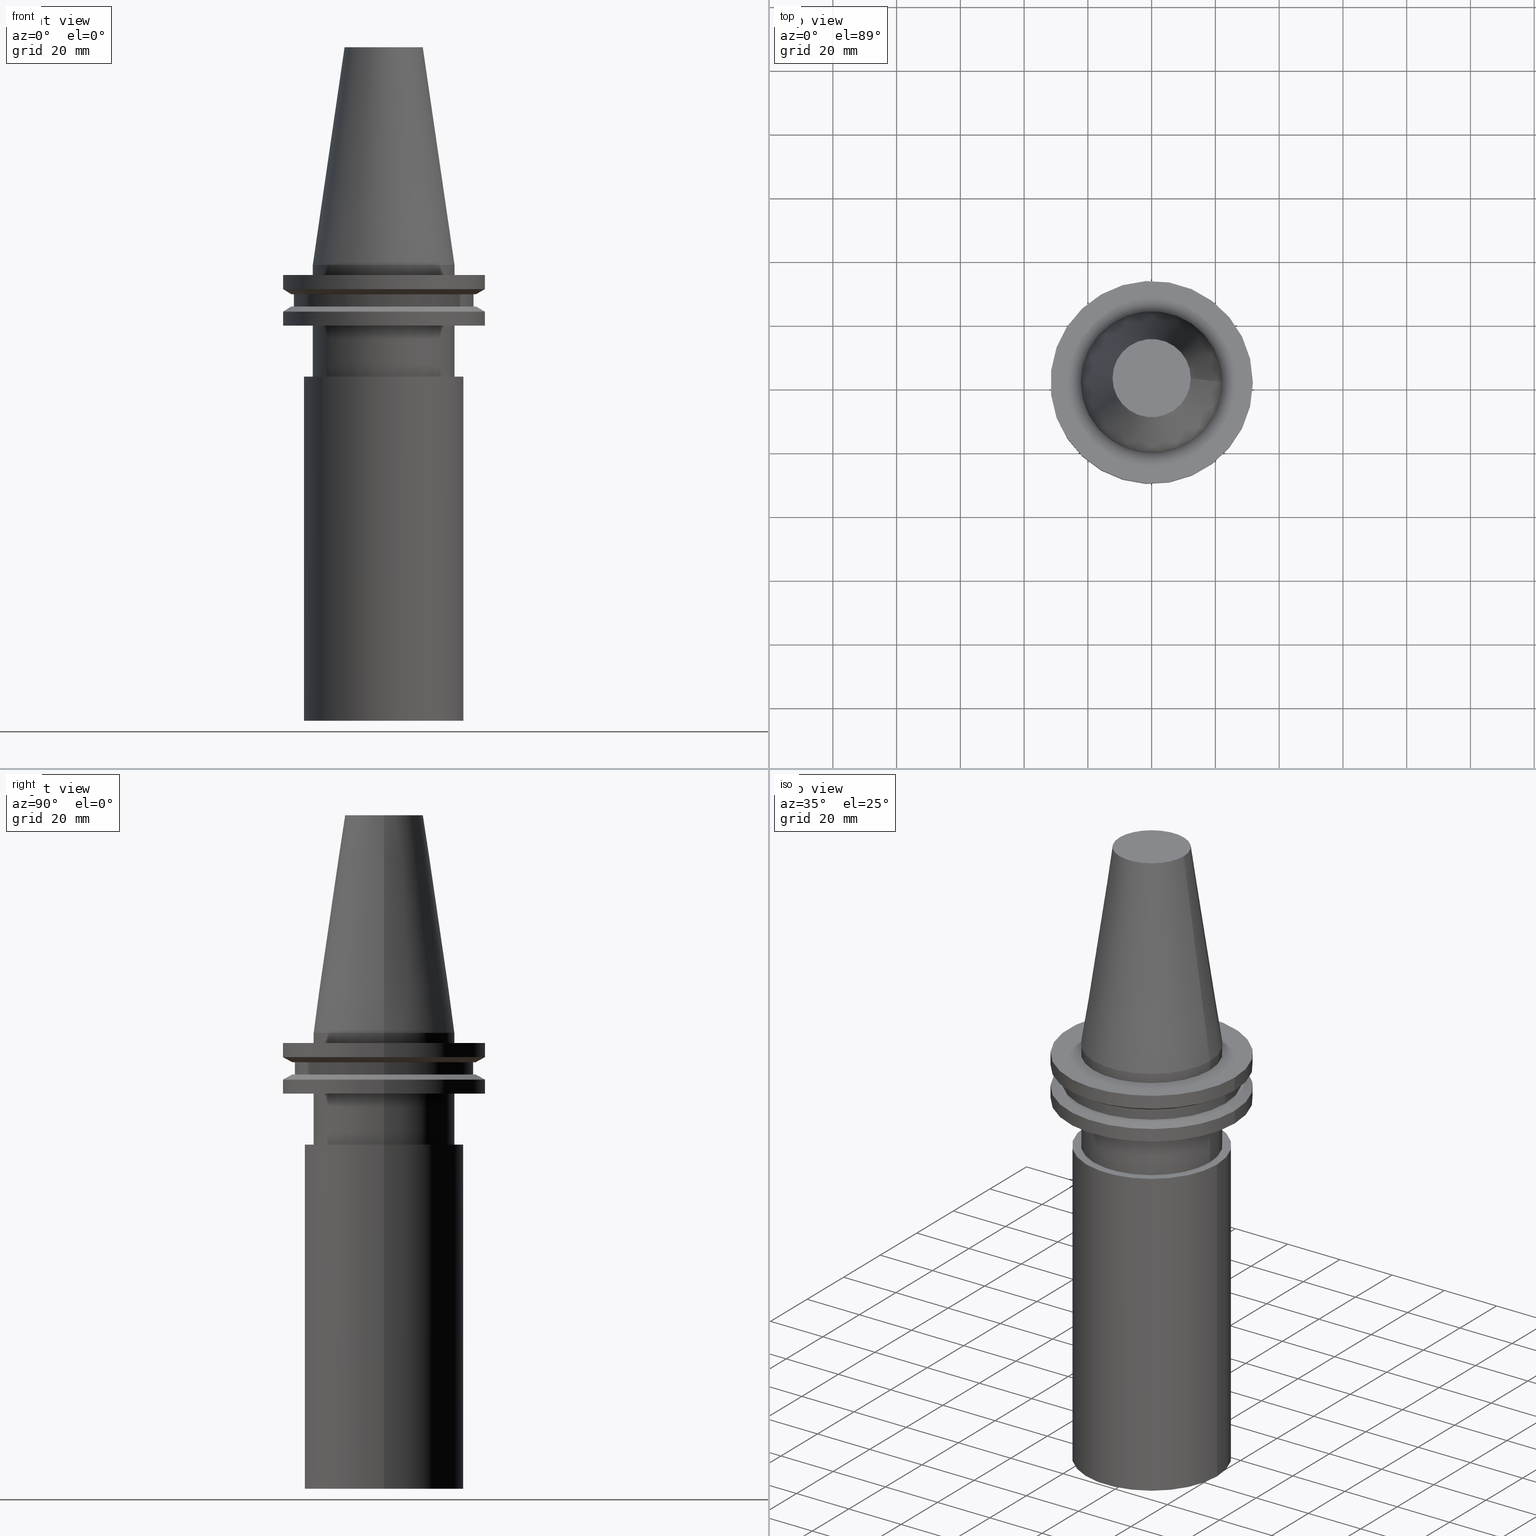
[diagram: canonical four-view strip — front | top / right | iso, engineering-drawing reading convention]
A machine part, canonical four-view strip (front | top / right | iso — engineering-drawing reading convention). The complete STEP part file that produces these views, byte-faithful:
ISO-10303-21;
HEADER;
FILE_DESCRIPTION (( 'STEP AP203' ),
    '1' );
FILE_NAME ('11_326_454.stp',
    '2022-03-09T14:21:58',
    ( '' ),
    ( '' ),
    'SwSTEP 2.0',
    'SolidWorks 2021',
    '' );
FILE_SCHEMA (( 'CONFIG_CONTROL_DESIGN' ));
ENDSEC;

DATA;
#1 = DIRECTION ( 'NONE',  ( 1.000000000000000000, 0.000000000000000000, 0.000000000000000000 ) ) ;
#2 = CARTESIAN_POINT ( 'NONE',  ( 0.000000000000000000, 0.000000000000000000, -19.04999999999999716 ) ) ;
#3 = SHAPE_DEFINITION_REPRESENTATION ( #28, #20 ) ;
#4 = APPLICATION_CONTEXT ( 'configuration controlled 3d designs of mechanical parts and assemblies' ) ;
#5 = AXIS2_PLACEMENT_3D ( 'NONE', #129, #291, #99 ) ;
#6 = DIRECTION ( 'NONE',  ( 1.000000000000000000, 0.000000000000000000, 0.000000000000000000 ) ) ;
#7 = CC_DESIGN_DATE_AND_TIME_ASSIGNMENT ( #62, #373, ( #182 ) ) ;
#8 = CARTESIAN_POINT ( 'NONE',  ( 0.000000000000000000, 0.000000000000000000, 0.000000000000000000 ) ) ;
#9 = FACE_OUTER_BOUND ( 'NONE', #49, .T. ) ;
#10 = DIRECTION ( 'NONE',  ( 0.000000000000000000, 0.000000000000000000, -1.000000000000000000 ) ) ;
#11 = EDGE_LOOP ( 'NONE', ( #137 ) ) ;
#12 = AXIS2_PLACEMENT_3D ( 'NONE', #165, #326, #386 ) ;
#13 = CARTESIAN_POINT ( 'NONE',  ( 25.00000000000000000, 0.000000000000000000, -35.04999999999999716 ) ) ;
#14 = EDGE_LOOP ( 'NONE', ( #237 ) ) ;
#15 = EDGE_LOOP ( 'NONE', ( #359 ) ) ;
#16 = ORIENTED_EDGE ( 'NONE', *, *, #37, .T. ) ;
#17 = APPROVAL ( #127, 'UNSPECIFIED' ) ;
#18 = AXIS2_PLACEMENT_3D ( 'NONE', #192, #321, #39 ) ;
#19 = EDGE_LOOP ( 'NONE', ( #268 ) ) ;
#20 = ADVANCED_BREP_SHAPE_REPRESENTATION ( '11_326_454', ( #245, #233, #43 ), #76 ) ;
#21 = EDGE_LOOP ( 'NONE', ( #16 ) ) ;
#22 = CARTESIAN_POINT ( 'NONE',  ( 0.000000000000000000, 0.000000000000000000, -19.04999999999999716 ) ) ;
#23 = AXIS2_PLACEMENT_3D ( 'NONE', #284, #218, #1 ) ;
#24 = CIRCLE ( 'NONE', #200, 31.75000000000000000 ) ;
#25 = CARTESIAN_POINT ( 'NONE',  ( 22.22500000000000142, 0.000000000000000000, -35.04999999999999716 ) ) ;
#26 = AXIS2_PLACEMENT_3D ( 'NONE', #2, #162, #69 ) ;
#27 = CARTESIAN_POINT ( 'NONE',  ( 0.000000000000000000, 25.00000000000000000, -143.0000000000000000 ) ) ;
#28 = PRODUCT_DEFINITION_SHAPE ( 'NONE', 'NONE',  #182 ) ;
#29 = DIRECTION ( 'NONE',  ( -0.000000000000000000, -0.000000000000000000, 1.000000000000000000 ) ) ;
#30 = APPROVAL_STATUS ( 'not_yet_approved' ) ;
#31 = FACE_OUTER_BOUND ( 'NONE', #391, .T. ) ;
#32 = APPLICATION_PROTOCOL_DEFINITION ( 'international standard', 'config_control_design', 1994, #4 ) ;
#33 = FACE_OUTER_BOUND ( 'NONE', #236, .T. ) ;
#34 = PERSON_AND_ORGANIZATION ( #93, #366 ) ;
#35 = ADVANCED_FACE ( 'NONE', ( #239, #78 ), #390, .F. ) ;
#36 = DIRECTION ( 'NONE',  ( -0.000000000000000000, -0.000000000000000000, 1.000000000000000000 ) ) ;
#37 = EDGE_CURVE ( 'NONE', #144, #144, #312, .T. ) ;
#38 = PERSON_AND_ORGANIZATION_ROLE ( 'classification_officer' ) ;
#39 = DIRECTION ( 'NONE',  ( 1.000000000000000000, 0.000000000000000000, 0.000000000000000000 ) ) ;
#40 = DIRECTION ( 'NONE',  ( 1.000000000000000000, 0.000000000000000000, 0.000000000000000000 ) ) ;
#41 = DIRECTION ( 'NONE',  ( 1.000000000000000000, 0.000000000000000000, 0.000000000000000000 ) ) ;
#42 = ORIENTED_EDGE ( 'NONE', *, *, #199, .F. ) ;
#43 = AXIS2_PLACEMENT_3D ( 'NONE', #273, #393, #275 ) ;
#44 = CC_DESIGN_PERSON_AND_ORGANIZATION_ASSIGNMENT ( #219, #155, ( #374 ) ) ;
#45 = ORIENTED_EDGE ( 'NONE', *, *, #116, .F. ) ;
#46 = ORIENTED_EDGE ( 'NONE', *, *, #204, .T. ) ;
#47 = EDGE_LOOP ( 'NONE', ( #145 ) ) ;
#48 = LOCAL_TIME ( 8, 21, 57.00000000000000000, #184 ) ;
#49 = EDGE_LOOP ( 'NONE', ( #173 ) ) ;
#50 = CARTESIAN_POINT ( 'NONE',  ( 0.000000000000000000, 0.000000000000000000, -3.174999999999997158 ) ) ;
#51 = DIRECTION ( 'NONE',  ( 0.000000000000000000, -0.000000000000000000, 1.000000000000000000 ) ) ;
#52 = CARTESIAN_POINT ( 'NONE',  ( 22.22500000000000142, 0.000000000000000000, -3.174999999999997158 ) ) ;
#53 = DIRECTION ( 'NONE',  ( 1.000000000000000000, 0.000000000000000000, 0.000000000000000000 ) ) ;
#54 = PERSON_AND_ORGANIZATION_ROLE ( 'creator' ) ;
#55 = CYLINDRICAL_SURFACE ( 'NONE', #101, 25.00000000000000000 ) ;
#56 = ADVANCED_FACE ( 'NONE', ( #91, #85 ), #372, .F. ) ;
#57 = CARTESIAN_POINT ( 'NONE',  ( 0.000000000000000000, 0.000000000000000000, -35.04999999999999716 ) ) ;
#58 = AXIS2_PLACEMENT_3D ( 'NONE', #289, #60, #229 ) ;
#59 = AXIS2_PLACEMENT_3D ( 'NONE', #324, #97, #346 ) ;
#60 = DIRECTION ( 'NONE',  ( -0.000000000000000000, -0.000000000000000000, 1.000000000000000000 ) ) ;
#61 = ADVANCED_FACE ( 'NONE', ( #257 ), #277, .F. ) ;
#62 = DATE_AND_TIME ( #98, #180 ) ;
#63 = EDGE_CURVE ( 'NONE', #248, #248, #322, .T. ) ;
#64 = DIRECTION ( 'NONE',  ( 1.000000000000000000, 0.000000000000000000, 0.000000000000000000 ) ) ;
#65 = DIRECTION ( 'NONE',  ( 1.000000000000000000, 0.000000000000000000, 0.000000000000000000 ) ) ;
#66 = CIRCLE ( 'NONE', #333, 22.22500000000000142 ) ;
#67 = ADVANCED_FACE ( 'NONE', ( #115, #249 ), #252, .T. ) ;
#68 = APPROVAL_PERSON_ORGANIZATION ( #34, #138, #221 ) ;
#69 = DIRECTION ( 'NONE',  ( 1.000000000000000000, 0.000000000000000000, 0.000000000000000000 ) ) ;
#70 = CARTESIAN_POINT ( 'NONE',  ( 0.000000000000000000, 0.000000000000000000, 0.000000000000000000 ) ) ;
#71 = EDGE_LOOP ( 'NONE', ( #211 ) ) ;
#72 =( NAMED_UNIT ( * ) SI_UNIT ( $, .STERADIAN. ) SOLID_ANGLE_UNIT ( ) );
#73 = AXIS2_PLACEMENT_3D ( 'NONE', #338, #280, #120 ) ;
#74 = CIRCLE ( 'NONE', #261, 28.17999999999999972 ) ;
#75 = ORIENTED_EDGE ( 'NONE', *, *, #204, .F. ) ;
#76 =( GEOMETRIC_REPRESENTATION_CONTEXT ( 3 ) GLOBAL_UNCERTAINTY_ASSIGNED_CONTEXT ( ( #394 ) ) GLOBAL_UNIT_ASSIGNED_CONTEXT ( ( #238, #399, #72 ) ) REPRESENTATION_CONTEXT ( 'NONE', 'WORKASPACE' ) );
#77 = ORIENTED_EDGE ( 'NONE', *, *, #227, .F. ) ;
#78 = FACE_OUTER_BOUND ( 'NONE', #175, .T. ) ;
#79 = VERTEX_POINT ( 'NONE', #337 ) ;
#80 = ORIENTED_EDGE ( 'NONE', *, *, #370, .T. ) ;
#81 = CIRCLE ( 'NONE', #89, 22.22500000000000142 ) ;
#82 = DIRECTION ( 'NONE',  ( -0.000000000000000000, -0.000000000000000000, 1.000000000000000000 ) ) ;
#83 = EDGE_LOOP ( 'NONE', ( #135 ) ) ;
#84 = VERTEX_POINT ( 'NONE', #181 ) ;
#85 = FACE_BOUND ( 'NONE', #47, .T. ) ;
#86 = EDGE_CURVE ( 'NONE', #114, #114, #24, .T. ) ;
#87 = FACE_OUTER_BOUND ( 'NONE', #15, .T. ) ;
#88 = DIRECTION ( 'NONE',  ( 1.000000000000000000, 0.000000000000000000, 0.000000000000000000 ) ) ;
#89 = AXIS2_PLACEMENT_3D ( 'NONE', #8, #189, #40 ) ;
#90 = PERSON_AND_ORGANIZATION ( #93, #366 ) ;
#91 = FACE_OUTER_BOUND ( 'NONE', #361, .T. ) ;
#92 = CARTESIAN_POINT ( 'NONE',  ( 0.000000000000000000, 22.22500000000000142, -35.04999999999999716 ) ) ;
#93 = PERSON ( 'UNSPECIFIED', 'UNSPECIFIED', 'UNSPECIFIED', ('UNSPECIFIED'), ('UNSPECIFIED'), ('UNSPECIFIED') ) ;
#94 = APPROVAL_STATUS ( 'not_yet_approved' ) ;
#95 = DIRECTION ( 'NONE',  ( -0.000000000000000000, -0.000000000000000000, 1.000000000000000000 ) ) ;
#96 = CIRCLE ( 'NONE', #106, 28.17999999999999972 ) ;
#97 = DIRECTION ( 'NONE',  ( 0.000000000000000000, 0.000000000000000000, -1.000000000000000000 ) ) ;
#98 = CALENDAR_DATE ( 2022, 9, 3 ) ;
#99 = DIRECTION ( 'NONE',  ( -1.000000000000000000, 0.000000000000000000, -0.000000000000000000 ) ) ;
#100 = FACE_BOUND ( 'NONE', #331, .T. ) ;
#101 = AXIS2_PLACEMENT_3D ( 'NONE', #309, #29, #375 ) ;
#102 = PLANE ( 'NONE',  #5 ) ;
#103 = FACE_OUTER_BOUND ( 'NONE', #83, .T. ) ;
#104 = ORIENTED_EDGE ( 'NONE', *, *, #86, .F. ) ;
#105 = ADVANCED_FACE ( 'NONE', ( #31, #214 ), #55, .T. ) ;
#106 = AXIS2_PLACEMENT_3D ( 'NONE', #160, #190, #64 ) ;
#107 = ORIENTED_EDGE ( 'NONE', *, *, #198, .T. ) ;
#108 = PRODUCT_RELATED_PRODUCT_CATEGORY ( 'detail', '', ( #374 ) ) ;
#109 = CARTESIAN_POINT ( 'NONE',  ( 31.75000000000000000, 0.000000000000000000, -3.174999999999997158 ) ) ;
#110 = FACE_BOUND ( 'NONE', #294, .T. ) ;
#111 = ORIENTED_EDGE ( 'NONE', *, *, #370, .F. ) ;
#112 = AXIS2_PLACEMENT_3D ( 'NONE', #22, #400, #151 ) ;
#113 = CC_DESIGN_APPROVAL ( #325, ( #231 ) ) ;
#114 = VERTEX_POINT ( 'NONE', #176 ) ;
#115 = FACE_OUTER_BOUND ( 'NONE', #274, .T. ) ;
#116 = EDGE_CURVE ( 'NONE', #305, #305, #251, .T. ) ;
#117 = FACE_OUTER_BOUND ( 'NONE', #336, .T. ) ;
#118 = DIRECTION ( 'NONE',  ( 1.000000000000000000, 0.000000000000000000, 0.000000000000000000 ) ) ;
#119 = PERSON_AND_ORGANIZATION_ROLE ( 'creator' ) ;
#120 = DIRECTION ( 'NONE',  ( 1.000000000000000000, 0.000000000000000000, 0.000000000000000000 ) ) ;
#121 = CONICAL_SURFACE ( 'NONE', #270, 28.97919780457007732, 1.047197551196598297 ) ;
#122 = CARTESIAN_POINT ( 'NONE',  ( 0.000000000000000000, 0.000000000000000000, -14.65472339340266572 ) ) ;
#123 = DIRECTION ( 'NONE',  ( 1.000000000000000000, 0.000000000000000000, 0.000000000000000000 ) ) ;
#124 = ADVANCED_FACE ( 'NONE', ( #313, #179 ), #311, .F. ) ;
#125 = FACE_OUTER_BOUND ( 'NONE', #209, .T. ) ;
#126 = AXIS2_PLACEMENT_3D ( 'NONE', #50, #397, #306 ) ;
#127 = APPROVAL_STATUS ( 'not_yet_approved' ) ;
#128 = AXIS2_PLACEMENT_3D ( 'NONE', #263, #382, #398 ) ;
#129 = CARTESIAN_POINT ( 'NONE',  ( 0.000000000000000000, 12.27178102086201150, 68.25000000000000000 ) ) ;
#130 = PLANE ( 'NONE',  #202 ) ;
#131 = DIRECTION ( 'NONE',  ( -0.000000000000000000, -0.000000000000000000, 1.000000000000000000 ) ) ;
#132 = AXIS2_PLACEMENT_3D ( 'NONE', #183, #369, #344 ) ;
#133 = LOCAL_TIME ( 8, 21, 57.00000000000000000, #152 ) ;
#134 = DIRECTION ( 'NONE',  ( 0.000000000000000000, 0.000000000000000000, -1.000000000000000000 ) ) ;
#135 = ORIENTED_EDGE ( 'NONE', *, *, #86, .T. ) ;
#136 = ADVANCED_FACE ( 'NONE', ( #220, #340 ), #342, .T. ) ;
#137 = ORIENTED_EDGE ( 'NONE', *, *, #148, .F. ) ;
#138 = APPROVAL ( #94, 'UNSPECIFIED' ) ;
#139 = ORIENTED_EDGE ( 'NONE', *, *, #199, .T. ) ;
#140 = AXIS2_PLACEMENT_3D ( 'NONE', #247, #185, #304 ) ;
#141 = AXIS2_PLACEMENT_3D ( 'NONE', #246, #82, #365 ) ;
#142 = EDGE_LOOP ( 'NONE', ( #46 ) ) ;
#143 = EDGE_LOOP ( 'NONE', ( #107 ) ) ;
#144 = VERTEX_POINT ( 'NONE', #109 ) ;
#145 = ORIENTED_EDGE ( 'NONE', *, *, #242, .T. ) ;
#146 = CIRCLE ( 'NONE', #26, 22.22500000000000142 ) ;
#147 = VERTEX_POINT ( 'NONE', #279 ) ;
#148 = EDGE_CURVE ( 'NONE', #356, #356, #66, .T. ) ;
#149 = DIRECTION ( 'NONE',  ( -0.000000000000000000, -0.000000000000000000, 1.000000000000000000 ) ) ;
#150 = CYLINDRICAL_SURFACE ( 'NONE', #141, 31.75000000000000000 ) ;
#151 = DIRECTION ( 'NONE',  ( 1.000000000000000000, 0.000000000000000000, 0.000000000000000000 ) ) ;
#152 = COORDINATED_UNIVERSAL_TIME_OFFSET ( 6, 0, .BEHIND. ) ;
#153 = CARTESIAN_POINT ( 'NONE',  ( 0.000000000000000000, 0.000000000000000000, 68.25000000000000000 ) ) ;
#154 = AXIS2_PLACEMENT_3D ( 'NONE', #70, #134, #196 ) ;
#155 = PERSON_AND_ORGANIZATION_ROLE ( 'design_owner' ) ;
#156 = DIRECTION ( 'NONE',  ( -0.000000000000000000, -0.000000000000000000, 1.000000000000000000 ) ) ;
#157 = PERSON_AND_ORGANIZATION_ROLE ( 'design_supplier' ) ;
#158 = CARTESIAN_POINT ( 'NONE',  ( 0.000000000000000000, 0.000000000000000000, -35.04999999999999716 ) ) ;
#159 = DATE_TIME_ROLE ( 'classification_date' ) ;
#160 = CARTESIAN_POINT ( 'NONE',  ( 0.000000000000000000, 0.000000000000000000, -9.204999999999991189 ) ) ;
#161 = APPROVAL_ROLE ( '' ) ;
#162 = DIRECTION ( 'NONE',  ( -0.000000000000000000, -0.000000000000000000, 1.000000000000000000 ) ) ;
#163 = CC_DESIGN_PERSON_AND_ORGANIZATION_ASSIGNMENT ( #288, #119, ( #384 ) ) ;
#164 = FACE_OUTER_BOUND ( 'NONE', #143, .T. ) ;
#165 = CARTESIAN_POINT ( 'NONE',  ( 0.000000000000000000, 0.000000000000000000, -7.605276606597335842 ) ) ;
#166 = ADVANCED_FACE ( 'NONE', ( #378 ), #282, .F. ) ;
#167 = AXIS2_PLACEMENT_3D ( 'NONE', #319, #10, #262 ) ;
#168 = VERTEX_POINT ( 'NONE', #362 ) ;
#169 = EDGE_LOOP ( 'NONE', ( #395 ) ) ;
#170 = EDGE_LOOP ( 'NONE', ( #267 ) ) ;
#171 = EDGE_LOOP ( 'NONE', ( #45 ) ) ;
#172 = CC_DESIGN_APPROVAL ( #17, ( #182 ) ) ;
#173 = ORIENTED_EDGE ( 'NONE', *, *, #269, .T. ) ;
#174 = CARTESIAN_POINT ( 'NONE',  ( 28.97919780457007732, 0.000000000000000000, -9.205000000000005400 ) ) ;
#175 = EDGE_LOOP ( 'NONE', ( #139 ) ) ;
#176 = CARTESIAN_POINT ( 'NONE',  ( 31.75000000000000000, 0.000000000000000000, -14.65472339340266572 ) ) ;
#177 = DIRECTION ( 'NONE',  ( -0.000000000000000000, -0.000000000000000000, 1.000000000000000000 ) ) ;
#178 = DIRECTION ( 'NONE',  ( 1.000000000000000000, 0.000000000000000000, 0.000000000000000000 ) ) ;
#179 = FACE_BOUND ( 'NONE', #142, .T. ) ;
#180 = LOCAL_TIME ( 8, 21, 57.00000000000000000, #377 ) ;
#181 = CARTESIAN_POINT ( 'NONE',  ( 12.27178102086201150, 0.000000000000000000, 68.25000000000000000 ) ) ;
#182 = PRODUCT_DEFINITION ( 'UNKNOWN', '', #384, #193 ) ;
#183 = CARTESIAN_POINT ( 'NONE',  ( 0.000000000000000000, 0.000000000000000000, 68.25000000000000000 ) ) ;
#184 = COORDINATED_UNIVERSAL_TIME_OFFSET ( 6, 0, .BEHIND. ) ;
#185 = DIRECTION ( 'NONE',  ( -0.000000000000000000, -0.000000000000000000, 1.000000000000000000 ) ) ;
#186 = PERSON_AND_ORGANIZATION ( #93, #366 ) ;
#187 = AXIS2_PLACEMENT_3D ( 'NONE', #153, #149, #256 ) ;
#188 = APPROVAL_DATE_TIME ( #250, #17 ) ;
#189 = DIRECTION ( 'NONE',  ( -0.000000000000000000, -0.000000000000000000, 1.000000000000000000 ) ) ;
#190 = DIRECTION ( 'NONE',  ( -0.000000000000000000, -0.000000000000000000, 1.000000000000000000 ) ) ;
#191 = APPROVAL_DATE_TIME ( #349, #138 ) ;
#192 = CARTESIAN_POINT ( 'NONE',  ( 0.000000000000000000, 0.000000000000000000, 68.25000000000000000 ) ) ;
#193 = DESIGN_CONTEXT ( 'detailed design', #4, 'design' ) ;
#194 = AXIS2_PLACEMENT_3D ( 'NONE', #27, #51, #118 ) ;
#195 = CIRCLE ( 'NONE', #314, 25.00000000000000000 ) ;
#196 = DIRECTION ( 'NONE',  ( -1.000000000000000000, 0.000000000000000000, 0.000000000000000000 ) ) ;
#197 = DIRECTION ( 'NONE',  ( 1.000000000000000000, 0.000000000000000000, 0.000000000000000000 ) ) ;
#198 = EDGE_CURVE ( 'NONE', #303, #303, #353, .T. ) ;
#199 = EDGE_CURVE ( 'NONE', #168, #168, #241, .T. ) ;
#200 = AXIS2_PLACEMENT_3D ( 'NONE', #122, #177, #88 ) ;
#201 = AXIS2_PLACEMENT_3D ( 'NONE', #207, #332, #392 ) ;
#202 = AXIS2_PLACEMENT_3D ( 'NONE', #158, #232, #355 ) ;
#203 = EDGE_LOOP ( 'NONE', ( #367 ) ) ;
#204 = EDGE_CURVE ( 'NONE', #147, #147, #146, .T. ) ;
#205 = EDGE_LOOP ( 'NONE', ( #389 ) ) ;
#206 = CC_DESIGN_DATE_AND_TIME_ASSIGNMENT ( #316, #159, ( #231 ) ) ;
#207 = CARTESIAN_POINT ( 'NONE',  ( 0.000000000000000000, 28.17999999999999972, -13.05499999999999794 ) ) ;
#208 = APPROVAL_PERSON_ORGANIZATION ( #186, #325, #343 ) ;
#209 = EDGE_LOOP ( 'NONE', ( #77 ) ) ;
#210 = VERTEX_POINT ( 'NONE', #371 ) ;
#211 = ORIENTED_EDGE ( 'NONE', *, *, #63, .F. ) ;
#212 = ADVANCED_FACE ( 'NONE', ( #381, #348 ), #402, .T. ) ;
#213 = ADVANCED_FACE ( 'NONE', ( #264, #352 ), #265, .F. ) ;
#214 = FACE_OUTER_BOUND ( 'NONE', #169, .T. ) ;
#215 = CC_DESIGN_PERSON_AND_ORGANIZATION_ASSIGNMENT ( #223, #157, ( #384 ) ) ;
#216 = CARTESIAN_POINT ( 'NONE',  ( 0.000000000000000000, 0.000000000000000000, -9.205000000000005400 ) ) ;
#217 = CLOSED_SHELL ( 'NONE', ( #212, #315, #166, #285, #124, #136, #260, #35, #67, #56, #385, #387, #213, #360 ) ) ;
#218 = DIRECTION ( 'NONE',  ( 0.000000000000000000, -0.000000000000000000, 1.000000000000000000 ) ) ;
#219 = PERSON_AND_ORGANIZATION ( #93, #366 ) ;
#220 = FACE_OUTER_BOUND ( 'NONE', #300, .T. ) ;
#221 = APPROVAL_ROLE ( '' ) ;
#222 = DIRECTION ( 'NONE',  ( 0.000000000000000000, -0.000000000000000000, 1.000000000000000000 ) ) ;
#223 = PERSON_AND_ORGANIZATION ( #93, #366 ) ;
#224 = DIRECTION ( 'NONE',  ( 1.000000000000000000, 0.000000000000000000, 0.000000000000000000 ) ) ;
#225 = CC_DESIGN_APPROVAL ( #138, ( #384 ) ) ;
#226 = CARTESIAN_POINT ( 'NONE',  ( 0.000000000000000000, 0.000000000000000000, 68.25000000000000000 ) ) ;
#227 = EDGE_CURVE ( 'NONE', #79, #79, #81, .T. ) ;
#228 = FACE_OUTER_BOUND ( 'NONE', #14, .T. ) ;
#229 = DIRECTION ( 'NONE',  ( 1.000000000000000000, 0.000000000000000000, 0.000000000000000000 ) ) ;
#230 = CLOSED_SHELL ( 'NONE', ( #350, #105, #61 ) ) ;
#231 = SECURITY_CLASSIFICATION ( '', '', #258 ) ;
#232 = DIRECTION ( 'NONE',  ( 0.000000000000000000, 0.000000000000000000, -1.000000000000000000 ) ) ;
#233 = MANIFOLD_SOLID_BREP ( 'CKB', #230 ) ;
#234 = CARTESIAN_POINT ( 'NONE',  ( 25.00000000000000000, 0.000000000000000000, -143.0000000000000000 ) ) ;
#235 = EDGE_LOOP ( 'NONE', ( #296 ) ) ;
#236 = EDGE_LOOP ( 'NONE', ( #75 ) ) ;
#237 = ORIENTED_EDGE ( 'NONE', *, *, #278, .T. ) ;
#238 =( LENGTH_UNIT ( ) NAMED_UNIT ( * ) SI_UNIT ( .MILLI., .METRE. ) );
#239 = FACE_BOUND ( 'NONE', #170, .T. ) ;
#240 = FACE_OUTER_BOUND ( 'NONE', #272, .T. ) ;
#241 = CIRCLE ( 'NONE', #58, 28.97919780457008088 ) ;
#242 = EDGE_CURVE ( 'NONE', #368, #368, #96, .T. ) ;
#243 = CIRCLE ( 'NONE', #12, 31.75000000000000000 ) ;
#244 = ORIENTED_EDGE ( 'NONE', *, *, #269, .F. ) ;
#245 = MANIFOLD_SOLID_BREP ( 'CV40', #217 ) ;
#246 = CARTESIAN_POINT ( 'NONE',  ( 0.000000000000000000, 0.000000000000000000, 68.25000000000000000 ) ) ;
#247 = CARTESIAN_POINT ( 'NONE',  ( 0.000000000000000000, 0.000000000000000000, -143.0000000000000000 ) ) ;
#248 = VERTEX_POINT ( 'NONE', #234 ) ;
#249 = FACE_OUTER_BOUND ( 'NONE', #203, .T. ) ;
#250 = DATE_AND_TIME ( #341, #328 ) ;
#251 = CIRCLE ( 'NONE', #112, 31.74999999999999289 ) ;
#252 = CYLINDRICAL_SURFACE ( 'NONE', #132, 28.17999999999999972 ) ;
#253 = CIRCLE ( 'NONE', #128, 28.97919780457007732 ) ;
#254 = COORDINATED_UNIVERSAL_TIME_OFFSET ( 6, 0, .BEHIND. ) ;
#255 = CC_DESIGN_PERSON_AND_ORGANIZATION_ASSIGNMENT ( #90, #38, ( #231 ) ) ;
#256 = DIRECTION ( 'NONE',  ( 1.000000000000000000, 0.000000000000000000, 0.000000000000000000 ) ) ;
#257 = FACE_OUTER_BOUND ( 'NONE', #71, .T. ) ;
#258 = SECURITY_CLASSIFICATION_LEVEL ( 'unclassified' ) ;
#259 = FACE_OUTER_BOUND ( 'NONE', #235, .T. ) ;
#260 = ADVANCED_FACE ( 'NONE', ( #100, #103 ), #354, .T. ) ;
#261 = AXIS2_PLACEMENT_3D ( 'NONE', #286, #351, #65 ) ;
#262 = DIRECTION ( 'NONE',  ( -1.000000000000000000, 0.000000000000000000, 0.000000000000000000 ) ) ;
#263 = CARTESIAN_POINT ( 'NONE',  ( 0.000000000000000000, 0.000000000000000000, -9.205000000000005400 ) ) ;
#264 = FACE_BOUND ( 'NONE', #11, .T. ) ;
#265 = PLANE ( 'NONE',  #59 ) ;
#266 = VERTEX_POINT ( 'NONE', #13 ) ;
#267 = ORIENTED_EDGE ( 'NONE', *, *, #357, .F. ) ;
#268 = ORIENTED_EDGE ( 'NONE', *, *, #116, .T. ) ;
#269 = EDGE_CURVE ( 'NONE', #84, #84, #292, .T. ) ;
#270 = AXIS2_PLACEMENT_3D ( 'NONE', #216, #339, #178 ) ;
#271 = ORIENTED_EDGE ( 'NONE', *, *, #295, .F. ) ;
#272 = EDGE_LOOP ( 'NONE', ( #330 ) ) ;
#273 = CARTESIAN_POINT ( 'NONE',  ( 0.000000000000000000, 0.000000000000000000, 0.000000000000000000 ) ) ;
#274 = EDGE_LOOP ( 'NONE', ( #302 ) ) ;
#275 = DIRECTION ( 'NONE',  ( 1.000000000000000000, 0.000000000000000000, 0.000000000000000000 ) ) ;
#276 = CARTESIAN_POINT ( 'NONE',  ( 31.74999999999999289, 0.000000000000000000, -19.04999999999999716 ) ) ;
#277 = PLANE ( 'NONE',  #194 ) ;
#278 = EDGE_CURVE ( 'NONE', #266, #266, #195, .T. ) ;
#279 = CARTESIAN_POINT ( 'NONE',  ( 22.22500000000000142, 0.000000000000000000, -19.04999999999999716 ) ) ;
#280 = DIRECTION ( 'NONE',  ( 0.000000000000000000, -0.000000000000000000, 1.000000000000000000 ) ) ;
#281 = CALENDAR_DATE ( 2022, 9, 3 ) ;
#282 = PLANE ( 'NONE',  #298 ) ;
#283 = AXIS2_PLACEMENT_3D ( 'NONE', #287, #383, #6 ) ;
#284 = CARTESIAN_POINT ( 'NONE',  ( 0.000000000000000000, 28.97919780457007732, -9.204999999999996518 ) ) ;
#285 = ADVANCED_FACE ( 'NONE', ( #33, #164 ), #290, .T. ) ;
#286 = CARTESIAN_POINT ( 'NONE',  ( 0.000000000000000000, 0.000000000000000000, -13.05499999999999794 ) ) ;
#287 = CARTESIAN_POINT ( 'NONE',  ( 0.000000000000000000, 0.000000000000000000, 68.25000000000000000 ) ) ;
#288 = PERSON_AND_ORGANIZATION ( #93, #366 ) ;
#289 = CARTESIAN_POINT ( 'NONE',  ( 0.000000000000000000, 0.000000000000000000, -13.05499999999999794 ) ) ;
#290 = CYLINDRICAL_SURFACE ( 'NONE', #283, 22.22500000000000142 ) ;
#291 = DIRECTION ( 'NONE',  ( 0.000000000000000000, 0.000000000000000000, -1.000000000000000000 ) ) ;
#292 = CIRCLE ( 'NONE', #396, 12.27178102086201150 ) ;
#293 = CARTESIAN_POINT ( 'NONE',  ( 28.17999999999999972, 0.000000000000000000, -9.204999999999991189 ) ) ;
#294 = EDGE_LOOP ( 'NONE', ( #80 ) ) ;
#295 = EDGE_CURVE ( 'NONE', #335, #335, #243, .T. ) ;
#296 = ORIENTED_EDGE ( 'NONE', *, *, #148, .T. ) ;
#297 = EDGE_LOOP ( 'NONE', ( #358 ) ) ;
#298 = AXIS2_PLACEMENT_3D ( 'NONE', #92, #222, #53 ) ;
#299 = LOCAL_TIME ( 8, 21, 57.00000000000000000, #403 ) ;
#300 = EDGE_LOOP ( 'NONE', ( #104 ) ) ;
#301 = MECHANICAL_CONTEXT ( 'NONE', #329, 'mechanical' ) ;
#302 = ORIENTED_EDGE ( 'NONE', *, *, #242, .F. ) ;
#303 = VERTEX_POINT ( 'NONE', #25 ) ;
#304 = DIRECTION ( 'NONE',  ( 1.000000000000000000, 0.000000000000000000, 0.000000000000000000 ) ) ;
#305 = VERTEX_POINT ( 'NONE', #276 ) ;
#306 = DIRECTION ( 'NONE',  ( 1.000000000000000000, 0.000000000000000000, 0.000000000000000000 ) ) ;
#307 = VERTEX_POINT ( 'NONE', #174 ) ;
#308 = CC_DESIGN_PERSON_AND_ORGANIZATION_ASSIGNMENT ( #380, #54, ( #182 ) ) ;
#309 = CARTESIAN_POINT ( 'NONE',  ( 0.000000000000000000, 0.000000000000000000, 0.000000000000000000 ) ) ;
#310 = CALENDAR_DATE ( 2022, 9, 3 ) ;
#311 = PLANE ( 'NONE',  #73 ) ;
#312 = CIRCLE ( 'NONE', #126, 31.75000000000000000 ) ;
#313 = FACE_OUTER_BOUND ( 'NONE', #171, .T. ) ;
#314 = AXIS2_PLACEMENT_3D ( 'NONE', #317, #131, #197 ) ;
#315 = ADVANCED_FACE ( 'NONE', ( #9 ), #102, .F. ) ;
#316 = DATE_AND_TIME ( #345, #48 ) ;
#317 = CARTESIAN_POINT ( 'NONE',  ( 0.000000000000000000, 0.000000000000000000, -35.04999999999999716 ) ) ;
#318 = PERSON_AND_ORGANIZATION ( #93, #366 ) ;
#319 = CARTESIAN_POINT ( 'NONE',  ( 0.000000000000000000, 0.000000000000000000, -14.65472339340266572 ) ) ;
#320 = DATE_AND_TIME ( #281, #133 ) ;
#321 = DIRECTION ( 'NONE',  ( -0.000000000000000000, -0.000000000000000000, 1.000000000000000000 ) ) ;
#322 = CIRCLE ( 'NONE', #140, 25.00000000000000000 ) ;
#323 = APPROVAL_PERSON_ORGANIZATION ( #318, #17, #161 ) ;
#324 = CARTESIAN_POINT ( 'NONE',  ( 0.000000000000000000, 31.75000000000000000, -3.174999999999993605 ) ) ;
#325 = APPROVAL ( #30, 'UNSPECIFIED' ) ;
#326 = DIRECTION ( 'NONE',  ( -0.000000000000000000, -0.000000000000000000, 1.000000000000000000 ) ) ;
#327 = APPLICATION_PROTOCOL_DEFINITION ( 'international standard', 'config_control_design', 1994, #329 ) ;
#328 = LOCAL_TIME ( 8, 21, 57.00000000000000000, #254 ) ;
#329 = APPLICATION_CONTEXT ( 'configuration controlled 3d designs of mechanical parts and assemblies' ) ;
#330 = ORIENTED_EDGE ( 'NONE', *, *, #295, .T. ) ;
#331 = EDGE_LOOP ( 'NONE', ( #42 ) ) ;
#332 = DIRECTION ( 'NONE',  ( 0.000000000000000000, 0.000000000000000000, -1.000000000000000000 ) ) ;
#333 = AXIS2_PLACEMENT_3D ( 'NONE', #376, #156, #123 ) ;
#334 = ORIENTED_EDGE ( 'NONE', *, *, #278, .F. ) ;
#335 = VERTEX_POINT ( 'NONE', #388 ) ;
#336 = EDGE_LOOP ( 'NONE', ( #271 ) ) ;
#337 = CARTESIAN_POINT ( 'NONE',  ( 22.22500000000000142, 0.000000000000000000, 0.000000000000000000 ) ) ;
#338 = CARTESIAN_POINT ( 'NONE',  ( 0.000000000000000000, 31.74999999999999289, -19.04999999999999716 ) ) ;
#339 = DIRECTION ( 'NONE',  ( -0.000000000000000000, -0.000000000000000000, 1.000000000000000000 ) ) ;
#340 = FACE_OUTER_BOUND ( 'NONE', #19, .T. ) ;
#341 = CALENDAR_DATE ( 2022, 9, 3 ) ;
#342 = CYLINDRICAL_SURFACE ( 'NONE', #187, 31.75000000000000000 ) ;
#343 = APPROVAL_ROLE ( '' ) ;
#344 = DIRECTION ( 'NONE',  ( 1.000000000000000000, 0.000000000000000000, 0.000000000000000000 ) ) ;
#345 = CALENDAR_DATE ( 2022, 9, 3 ) ;
#346 = DIRECTION ( 'NONE',  ( -1.000000000000000000, 0.000000000000000000, -0.000000000000000000 ) ) ;
#347 = CC_DESIGN_SECURITY_CLASSIFICATION ( #231, ( #384 ) ) ;
#348 = FACE_OUTER_BOUND ( 'NONE', #297, .T. ) ;
#349 = DATE_AND_TIME ( #310, #299 ) ;
#350 = ADVANCED_FACE ( 'NONE', ( #228 ), #130, .F. ) ;
#351 = DIRECTION ( 'NONE',  ( -0.000000000000000000, -0.000000000000000000, 1.000000000000000000 ) ) ;
#352 = FACE_OUTER_BOUND ( 'NONE', #21, .T. ) ;
#353 = CIRCLE ( 'NONE', #364, 22.22500000000000142 ) ;
#354 = CONICAL_SURFACE ( 'NONE', #167, 31.75000000000000000, 1.047197551196597853 ) ;
#355 = DIRECTION ( 'NONE',  ( -1.000000000000000000, 0.000000000000000000, -0.000000000000000000 ) ) ;
#356 = VERTEX_POINT ( 'NONE', #52 ) ;
#357 = EDGE_CURVE ( 'NONE', #210, #210, #74, .T. ) ;
#358 = ORIENTED_EDGE ( 'NONE', *, *, #227, .T. ) ;
#359 = ORIENTED_EDGE ( 'NONE', *, *, #37, .F. ) ;
#360 = ADVANCED_FACE ( 'NONE', ( #125, #259 ), #379, .T. ) ;
#361 = EDGE_LOOP ( 'NONE', ( #111 ) ) ;
#362 = CARTESIAN_POINT ( 'NONE',  ( 28.97919780457008088, 0.000000000000000000, -13.05499999999999794 ) ) ;
#363 = EDGE_LOOP ( 'NONE', ( #244 ) ) ;
#364 = AXIS2_PLACEMENT_3D ( 'NONE', #57, #95, #224 ) ;
#365 = DIRECTION ( 'NONE',  ( 1.000000000000000000, 0.000000000000000000, 0.000000000000000000 ) ) ;
#366 = ORGANIZATION ( 'UNSPECIFIED', 'UNSPECIFIED', '' ) ;
#367 = ORIENTED_EDGE ( 'NONE', *, *, #357, .T. ) ;
#368 = VERTEX_POINT ( 'NONE', #293 ) ;
#369 = DIRECTION ( 'NONE',  ( -0.000000000000000000, -0.000000000000000000, 1.000000000000000000 ) ) ;
#370 = EDGE_CURVE ( 'NONE', #307, #307, #253, .T. ) ;
#371 = CARTESIAN_POINT ( 'NONE',  ( 28.17999999999999972, 0.000000000000000000, -13.05499999999999794 ) ) ;
#372 = PLANE ( 'NONE',  #23 ) ;
#373 = DATE_TIME_ROLE ( 'creation_date' ) ;
#374 = PRODUCT ( '11_326_454', '11_326_454', '', ( #301 ) ) ;
#375 = DIRECTION ( 'NONE',  ( 1.000000000000000000, 0.000000000000000000, 0.000000000000000000 ) ) ;
#376 = CARTESIAN_POINT ( 'NONE',  ( 0.000000000000000000, 0.000000000000000000, -3.174999999999997158 ) ) ;
#377 = COORDINATED_UNIVERSAL_TIME_OFFSET ( 6, 0, .BEHIND. ) ;
#378 = FACE_OUTER_BOUND ( 'NONE', #205, .T. ) ;
#379 = CYLINDRICAL_SURFACE ( 'NONE', #18, 22.22500000000000142 ) ;
#380 = PERSON_AND_ORGANIZATION ( #93, #366 ) ;
#381 = FACE_BOUND ( 'NONE', #363, .T. ) ;
#382 = DIRECTION ( 'NONE',  ( -0.000000000000000000, -0.000000000000000000, 1.000000000000000000 ) ) ;
#383 = DIRECTION ( 'NONE',  ( -0.000000000000000000, -0.000000000000000000, 1.000000000000000000 ) ) ;
#384 = PRODUCT_DEFINITION_FORMATION_WITH_SPECIFIED_SOURCE ( 'ANY', '', #374, .NOT_KNOWN. ) ;
#385 = ADVANCED_FACE ( 'NONE', ( #117, #110 ), #121, .T. ) ;
#386 = DIRECTION ( 'NONE',  ( 1.000000000000000000, 0.000000000000000000, 0.000000000000000000 ) ) ;
#387 = ADVANCED_FACE ( 'NONE', ( #87, #240 ), #150, .T. ) ;
#388 = CARTESIAN_POINT ( 'NONE',  ( 31.75000000000000000, 0.000000000000000000, -7.605276606597335842 ) ) ;
#389 = ORIENTED_EDGE ( 'NONE', *, *, #198, .F. ) ;
#390 = PLANE ( 'NONE',  #201 ) ;
#391 = EDGE_LOOP ( 'NONE', ( #334 ) ) ;
#392 = DIRECTION ( 'NONE',  ( -1.000000000000000000, 0.000000000000000000, -0.000000000000000000 ) ) ;
#393 = DIRECTION ( 'NONE',  ( 0.000000000000000000, 0.000000000000000000, 1.000000000000000000 ) ) ;
#394 = UNCERTAINTY_MEASURE_WITH_UNIT (LENGTH_MEASURE( 1.000000000000000082E-05 ), #238, 'distance_accuracy_value', 'NONE');
#395 = ORIENTED_EDGE ( 'NONE', *, *, #63, .T. ) ;
#396 = AXIS2_PLACEMENT_3D ( 'NONE', #226, #36, #41 ) ;
#397 = DIRECTION ( 'NONE',  ( -0.000000000000000000, -0.000000000000000000, 1.000000000000000000 ) ) ;
#398 = DIRECTION ( 'NONE',  ( 1.000000000000000000, 0.000000000000000000, 0.000000000000000000 ) ) ;
#399 =( NAMED_UNIT ( * ) PLANE_ANGLE_UNIT ( ) SI_UNIT ( $, .RADIAN. ) );
#400 = DIRECTION ( 'NONE',  ( -0.000000000000000000, -0.000000000000000000, 1.000000000000000000 ) ) ;
#401 = APPROVAL_DATE_TIME ( #320, #325 ) ;
#402 = CONICAL_SURFACE ( 'NONE', #154, 22.22500000000000142, 0.1448138465474119174 ) ;
#403 = COORDINATED_UNIVERSAL_TIME_OFFSET ( 6, 0, .BEHIND. ) ;
ENDSEC;
END-ISO-10303-21;
